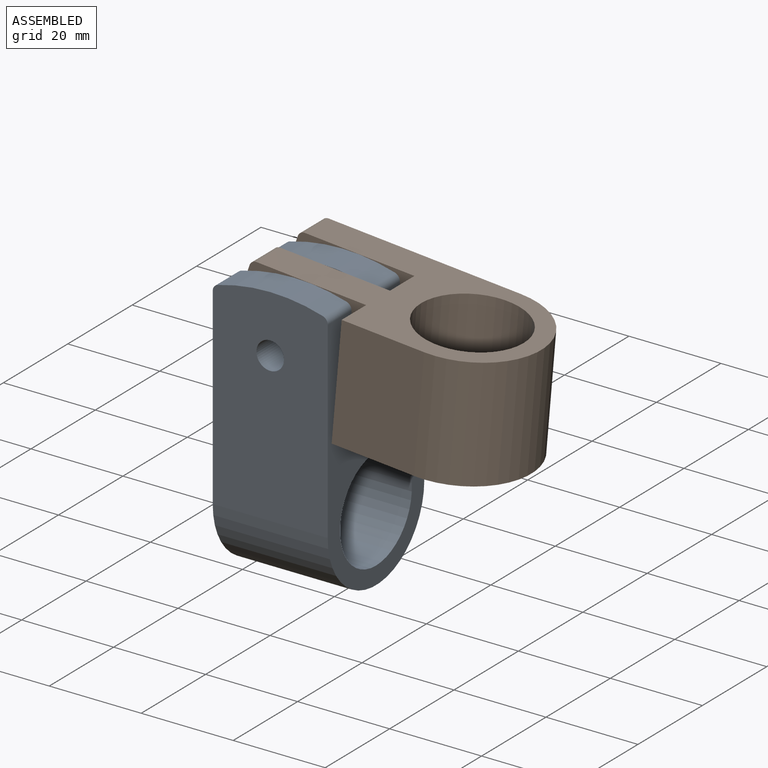
[diagram: assembled view]
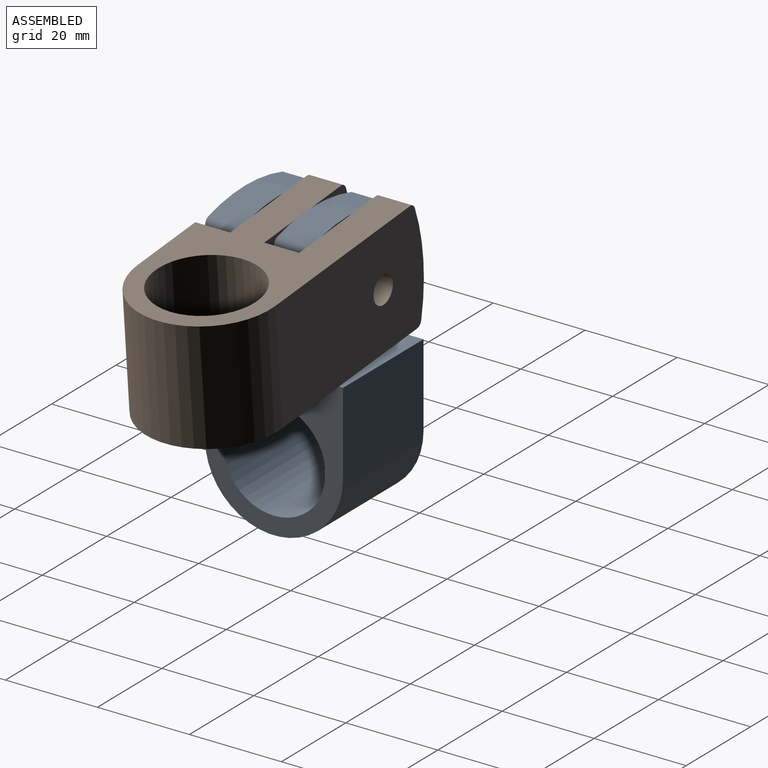
[diagram: assembled view, second angle]
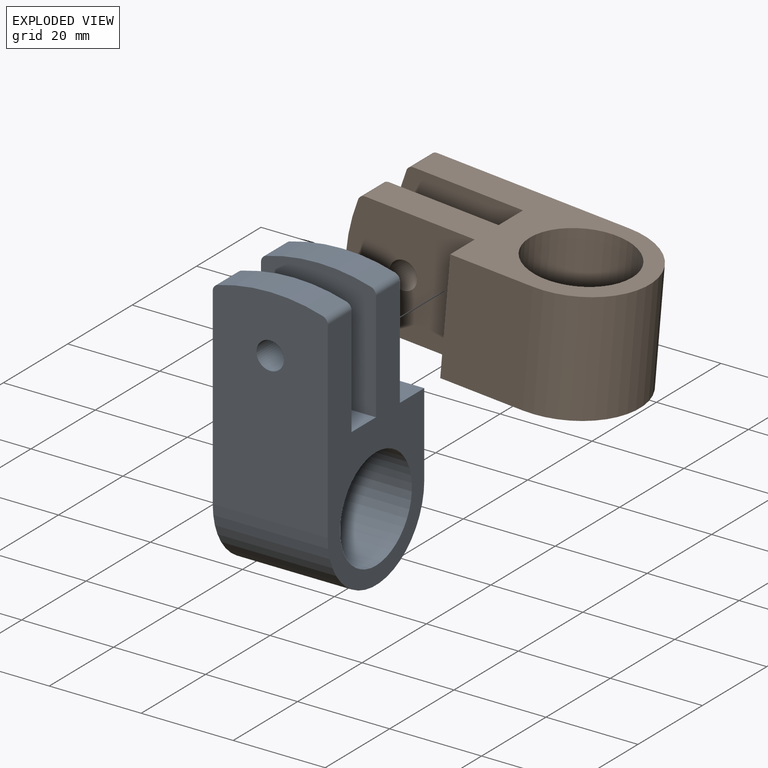
[diagram: exploded view]
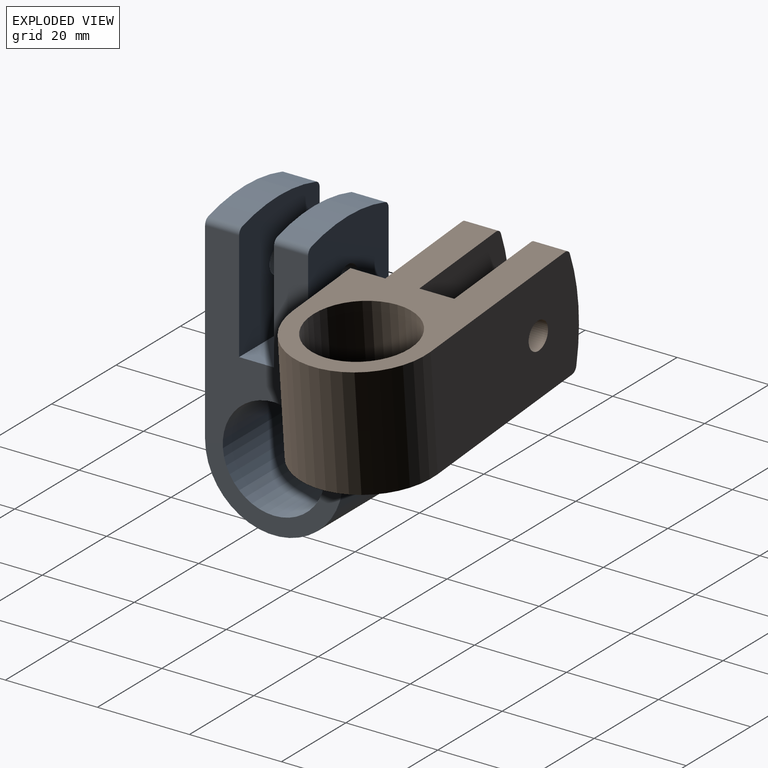
[diagram: exploded view, second angle]
ASSEMBLY  parts=2 mates=2
PART A: 19 faces, bbox 25x30x60 mm
  f0: plane 45x25mm, normal (0,-1,0), area 1079.8mm2, adj f4,f5,f6,f11,f12,f15,f16
  f1: plane 27x25mm, normal (0,1,0), area 629.8mm2, adj f4,f5,f8,f13,f14,f17,f18
  f2: plane 27x25mm, normal (0,-1,0), area 629.8mm2, adj f4,f5,f9,f13,f14,f17,f18
  f3: plane 27x25mm, normal (0,1,0), area 629.8mm2, adj f4,f5,f9,f11,f12,f15,f16
  f4: plane 56.9x30mm, normal (1,0,0), area 856.5mm2, adj f0,f1,f2,f3,f6,f7,f8,f9
  f5: plane 56.9x30mm, normal (-1,0,0), area 856.5mm2, adj f0,f1,f2,f3,f6,f7,f8,f9
  f6: cylinder r=15mm len=30mm, axis (-1,0,0), area 1178.1mm2, adj f0,f4,f5,f7
  f7: plane 25x18mm, normal (0,1,0), area 450mm2, adj f4,f5,f6,f8
  f8: plane 25x7.6mm, normal (0,0,1), area 190mm2, adj f1,f4,f5,f7
  f9: plane 25x7.6mm, normal (0,0,1), area 190mm2, adj f2,f3,f4,f5
  f10: cylinder r=11.15mm len=25mm, axis (-1,0,0), area 1751.4mm2, adj f4,f5
  f11: cylinder r=40.06mm len=22.86mm, axis (0,-1,0), area 171.5mm2, adj f0,f3,f15,f16
  f12: cylinder r=3mm len=7.4mm, axis (0,-1,0), area 139.5mm2, adj f0,f3
  f13: cylinder r=40.06mm len=22.86mm, axis (0,-1,0), area 171.5mm2, adj f1,f2,f17,f18
  f14: cylinder r=3mm len=7.4mm, axis (0,-1,0), area 139.5mm2, adj f1,f2
  f15: cylinder r=1.5mm len=7.4mm, axis (0,-1,0), area 14.2mm2, adj f0,f3,f4,f11
  f16: cylinder r=1.5mm len=7.4mm, axis (0,-1,0), area 14.2mm2, adj f0,f3,f5,f11
  f17: cylinder r=1.5mm len=7.4mm, axis (0,-1,0), area 14.2mm2, adj f1,f2,f4,f13
  f18: cylinder r=1.5mm len=7.4mm, axis (0,-1,0), area 14.2mm2, adj f1,f2,f5,f13
PART B: same geometry as A
PLACE A t=(-60.06,-54.15,80.05)mm fixed
PLACE B rot(axis=(0.68,0,-0.74),180deg) t=(-14.09,-54.15,122.17)mm
MATE planar B.f0 <-> A.f7  axis (0,1,0) through (-36.99,-39.15,111.62)mm
MATE cylindrical A.f12 <-> B.f12  axis (0,1,0) through (-47.56,-61.75,112.55)mm
